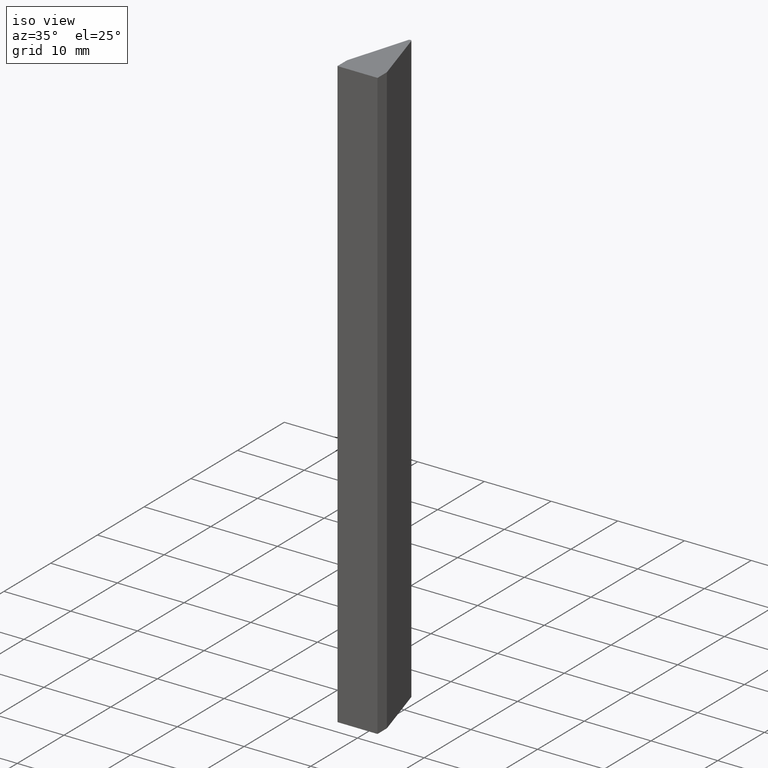
[diagram: clean part render]
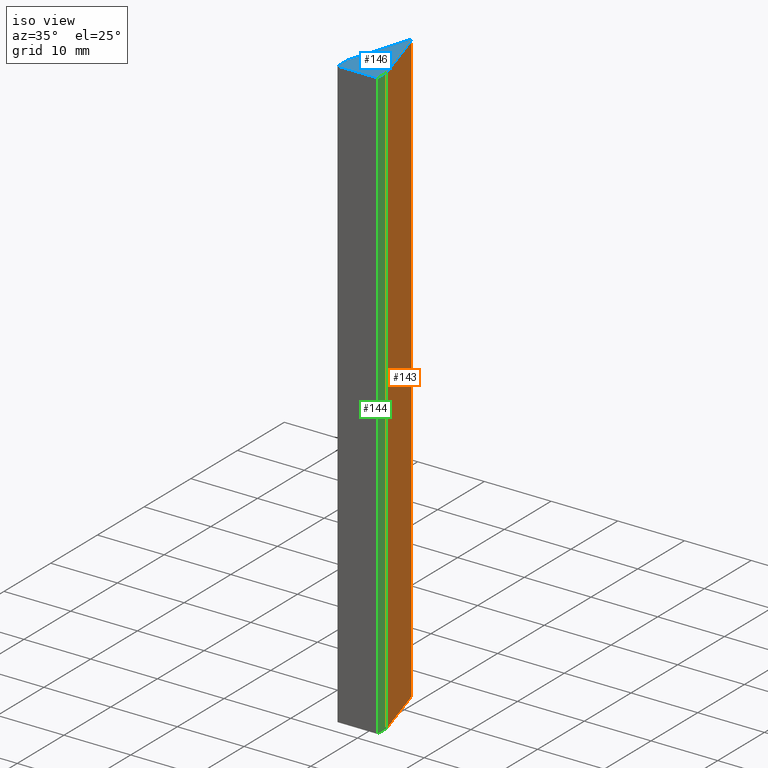
[diagram: same view with three faces highlighted in distinct colors, each labeled with its STEP entity id]
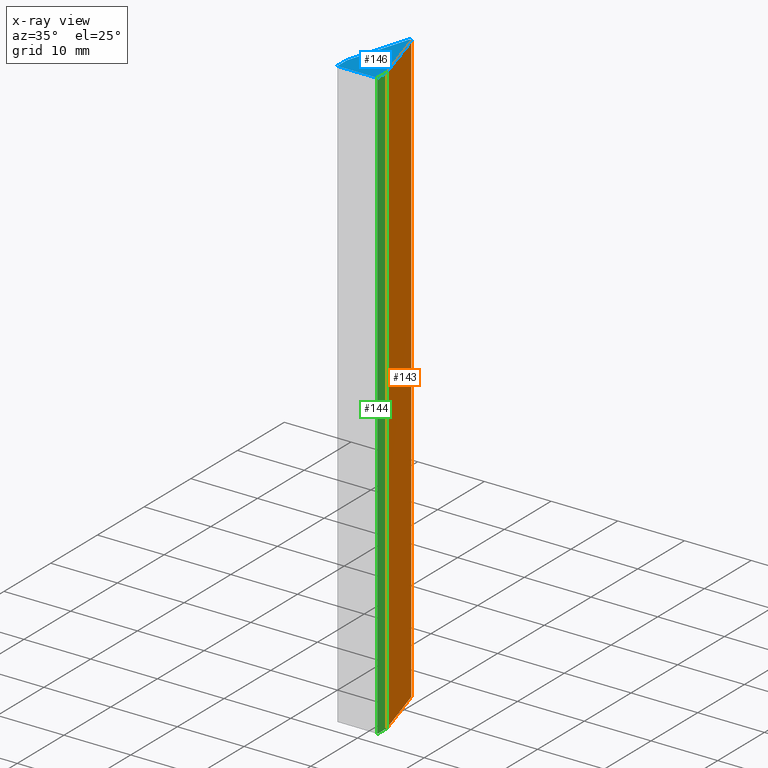
[diagram: x-ray of the same camera — body ghosted, the three highlighted faces saturated]
A machine part, iso view with three faces highlighted in distinct colors.
The next image is the same camera in x-ray (body ghosted, the three faces saturated) — at least one of them is partly hidden behind the body in this view.
Their STEP definitions:

[orange] entity #143 — the highlighted planar face has unit normal (0.9576, 0.2882, 0).
#20=FACE_OUTER_BOUND('',#28,.T.);
#28=EDGE_LOOP('',(#114,#115,#116,#117));
#37=LINE('',#230,#53);
#44=LINE('',#245,#60);
#45=LINE('',#248,#61);
#46=LINE('',#249,#62);
#53=VECTOR('',#189,10.);
#60=VECTOR('',#204,10.);
#61=VECTOR('',#207,10.);
#62=VECTOR('',#208,10.);
#70=VERTEX_POINT('',#227);
#71=VERTEX_POINT('',#229);
#75=VERTEX_POINT('',#243);
#76=VERTEX_POINT('',#247);
#82=EDGE_CURVE('',#70,#71,#37,.T.);
#90=EDGE_CURVE('',#70,#75,#44,.T.);
#91=EDGE_CURVE('',#76,#75,#45,.T.);
#92=EDGE_CURVE('',#71,#76,#46,.T.);
#114=ORIENTED_EDGE('',*,*,#90,.T.);
#115=ORIENTED_EDGE('',*,*,#91,.F.);
#116=ORIENTED_EDGE('',*,*,#92,.F.);
#117=ORIENTED_EDGE('',*,*,#82,.F.);
#135=PLANE('',#176);
#143=ADVANCED_FACE('',(#20),#135,.T.);
#176=AXIS2_PLACEMENT_3D('',#246,#205,#206);
#189=DIRECTION('',(0.288209068636556,-0.957567508197542,0.));
#204=DIRECTION('',(0.,0.,1.));
#205=DIRECTION('center_axis',(0.957567508197542,0.288209068636556,0.));
#206=DIRECTION('ref_axis',(-0.288209068636556,0.957567508197542,0.));
#207=DIRECTION('',(-0.288209068636556,0.957567508197542,0.));
#208=DIRECTION('',(0.,0.,1.));
#227=CARTESIAN_POINT('',(0.239391877049374,11.1820522671591,-44.45));
#229=CARTESIAN_POINT('',(3.00000000000002,2.01,-44.45));
#230=CARTESIAN_POINT('',(3.00000000000002,2.01,-44.45));
#243=CARTESIAN_POINT('',(0.239391877049374,11.1820522671591,44.45));
#245=CARTESIAN_POINT('',(0.239391877049374,11.1820522671591,0.));
#246=CARTESIAN_POINT('Origin',(3.00000000000002,2.01,0.));
#247=CARTESIAN_POINT('',(3.00000000000002,2.01,44.45));
#248=CARTESIAN_POINT('',(3.00000000000002,2.01,44.45));
#249=CARTESIAN_POINT('',(3.00000000000002,2.01,0.));

[blue] entity #146 — the highlighted planar face has unit normal (0, 0, 1).
#23=FACE_OUTER_BOUND('',#31,.T.);
#31=EDGE_LOOP('',(#126,#127,#128,#129,#130,#131));
#33=CIRCLE('',#175,0.25);
#40=LINE('',#236,#56);
#42=LINE('',#240,#58);
#45=LINE('',#248,#61);
#47=LINE('',#252,#63);
#49=LINE('',#255,#65);
#56=VECTOR('',#194,10.);
#58=VECTOR('',#198,10.);
#61=VECTOR('',#207,10.);
#63=VECTOR('',#211,10.);
#65=VECTOR('',#215,10.);
#72=VERTEX_POINT('',#233);
#73=VERTEX_POINT('',#235);
#74=VERTEX_POINT('',#239);
#75=VERTEX_POINT('',#243);
#76=VERTEX_POINT('',#247);
#77=VERTEX_POINT('',#251);
#85=EDGE_CURVE('',#73,#72,#40,.T.);
#87=EDGE_CURVE('',#74,#73,#42,.T.);
#89=EDGE_CURVE('',#75,#74,#33,.T.);
#91=EDGE_CURVE('',#76,#75,#45,.T.);
#93=EDGE_CURVE('',#77,#76,#47,.T.);
#95=EDGE_CURVE('',#72,#77,#49,.T.);
#126=ORIENTED_EDGE('',*,*,#95,.T.);
#127=ORIENTED_EDGE('',*,*,#93,.T.);
#128=ORIENTED_EDGE('',*,*,#91,.T.);
#129=ORIENTED_EDGE('',*,*,#89,.T.);
#130=ORIENTED_EDGE('',*,*,#87,.T.);
#131=ORIENTED_EDGE('',*,*,#85,.T.);
#138=PLANE('',#179);
#146=ADVANCED_FACE('',(#23),#138,.T.);
#175=AXIS2_PLACEMENT_3D('',#244,#202,#203);
#179=AXIS2_PLACEMENT_3D('',#256,#216,#217);
#194=DIRECTION('',(6.62819716194126E-15,-1.,0.));
#198=DIRECTION('',(-0.288209068636552,-0.957567508197543,0.));
#202=DIRECTION('center_axis',(0.,0.,1.));
#203=DIRECTION('ref_axis',(0.957567508197544,0.288209068636548,0.));
#207=DIRECTION('',(-0.288209068636556,0.957567508197542,0.));
#211=DIRECTION('',(1.10469952699021E-15,1.,0.));
#215=DIRECTION('',(1.,2.77555756156289E-16,0.));
#216=DIRECTION('center_axis',(0.,0.,1.));
#217=DIRECTION('ref_axis',(1.,0.,0.));
#233=CARTESIAN_POINT('',(-2.99999999999999,-3.88578058618805E-15,44.45));
#235=CARTESIAN_POINT('',(-3.,2.00999999999999,44.45));
#236=CARTESIAN_POINT('',(-3.,2.00999999999999,44.45));
#239=CARTESIAN_POINT('',(-0.239391877049385,11.1820522671591,44.45));
#240=CARTESIAN_POINT('',(-0.239391877049385,11.1820522671591,44.45));
#243=CARTESIAN_POINT('',(0.239391877049374,11.1820522671591,44.45));
#244=CARTESIAN_POINT('Origin',(-5.55111512312578E-15,11.11,44.45));
#247=CARTESIAN_POINT('',(3.00000000000002,2.01,44.45));
#248=CARTESIAN_POINT('',(3.00000000000002,2.01,44.45));
#251=CARTESIAN_POINT('',(3.00000000000002,-2.22044604925031E-15,44.45));
#252=CARTESIAN_POINT('',(3.00000000000002,-2.22044604925031E-15,44.45));
#255=CARTESIAN_POINT('',(-2.99999999999999,-3.88578058618805E-15,44.45));
#256=CARTESIAN_POINT('Origin',(9.71445146547012E-15,5.68,44.45));

[green] entity #144 — the highlighted planar face has unit normal (1, -0, 0).
#21=FACE_OUTER_BOUND('',#29,.T.);
#29=EDGE_LOOP('',(#118,#119,#120,#121));
#38=LINE('',#231,#54);
#46=LINE('',#249,#62);
#47=LINE('',#252,#63);
#48=LINE('',#253,#64);
#54=VECTOR('',#190,10.);
#62=VECTOR('',#208,10.);
#63=VECTOR('',#211,10.);
#64=VECTOR('',#212,10.);
#66=VERTEX_POINT('',#220);
#71=VERTEX_POINT('',#229);
#76=VERTEX_POINT('',#247);
#77=VERTEX_POINT('',#251);
#83=EDGE_CURVE('',#71,#66,#38,.T.);
#92=EDGE_CURVE('',#71,#76,#46,.T.);
#93=EDGE_CURVE('',#77,#76,#47,.T.);
#94=EDGE_CURVE('',#66,#77,#48,.T.);
#118=ORIENTED_EDGE('',*,*,#92,.T.);
#119=ORIENTED_EDGE('',*,*,#93,.F.);
#120=ORIENTED_EDGE('',*,*,#94,.F.);
#121=ORIENTED_EDGE('',*,*,#83,.F.);
#136=PLANE('',#177);
#144=ADVANCED_FACE('',(#21),#136,.T.);
#177=AXIS2_PLACEMENT_3D('',#250,#209,#210);
#190=DIRECTION('',(-1.10469952699021E-15,-1.,0.));
#208=DIRECTION('',(0.,0.,1.));
#209=DIRECTION('center_axis',(1.,-1.10469952699021E-15,0.));
#210=DIRECTION('ref_axis',(1.10469952699021E-15,1.,0.));
#211=DIRECTION('',(1.10469952699021E-15,1.,0.));
#212=DIRECTION('',(0.,0.,1.));
#220=CARTESIAN_POINT('',(3.00000000000002,-2.22044604925031E-15,-44.45));
#229=CARTESIAN_POINT('',(3.00000000000002,2.01,-44.45));
#231=CARTESIAN_POINT('',(3.00000000000002,-2.22044604925031E-15,-44.45));
#247=CARTESIAN_POINT('',(3.00000000000002,2.01,44.45));
#249=CARTESIAN_POINT('',(3.00000000000002,2.01,0.));
#250=CARTESIAN_POINT('Origin',(3.00000000000002,-2.22044604925031E-15,0.));
#251=CARTESIAN_POINT('',(3.00000000000002,-2.22044604925031E-15,44.45));
#252=CARTESIAN_POINT('',(3.00000000000002,-2.22044604925031E-15,44.45));
#253=CARTESIAN_POINT('',(3.00000000000002,-2.22044604925031E-15,0.));